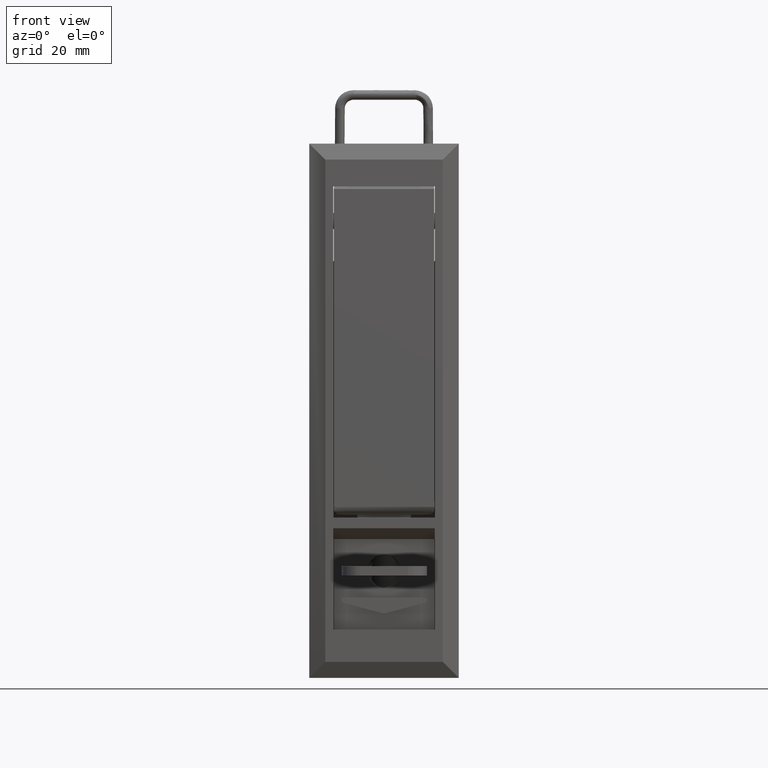
[diagram: clean part render]
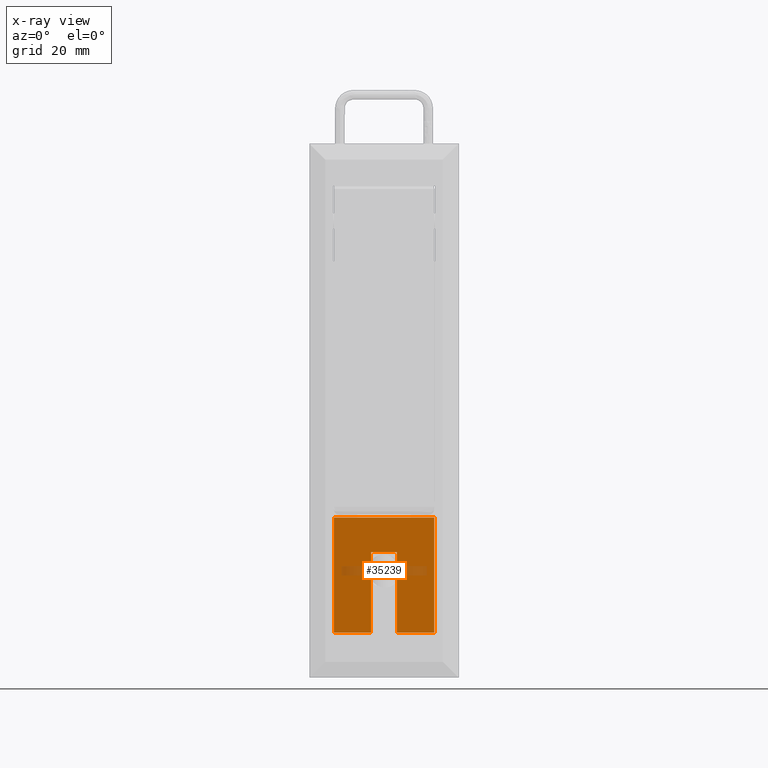
[diagram: x-ray — body ghosted, one internal face saturated and labeled with its STEP entity id]
A machine part, front view, then the same camera in x-ray: the body is ghosted and one INTERNAL B-rep face — a face not visible from any outside direction — is saturated and labeled: STEP entity #35239.
In plain terms, the highlighted face is a freeform B-spline surface patch.
Its self-contained STEP definition (entity closure, byte-faithful):
#34225=CARTESIAN_POINT('',(10.699999999999999,-2.441823089414955,23.500000000000000));
#34226=VERTEX_POINT('',#34225);
#34227=CARTESIAN_POINT('',(10.699999999999999,2.441823089414955,23.500000000000000));
#34228=VERTEX_POINT('',#34227);
#34229=CARTESIAN_POINT('',(10.699999999999999,-2.441823089414955,23.500000000000000));
#34230=CARTESIAN_POINT('',(10.699999999999999,2.441823089414955,23.500000000000000));
#34231=QUASI_UNIFORM_CURVE('',1,(#34229,#34230),.UNSPECIFIED.,.F.,.U.);
#34232=EDGE_CURVE('',#34226,#34228,#34231,.T.);
#35091=CARTESIAN_POINT('',(10.699999999999999,-9.400000000000000,30.0));
#35092=VERTEX_POINT('',#35091);
#35105=CARTESIAN_POINT('',(10.699999999999999,-9.400000000000000,8.500000000000000));
#35106=VERTEX_POINT('',#35105);
#35112=CARTESIAN_POINT('',(10.699999999999999,-9.400000000000000,30.0));
#35113=CARTESIAN_POINT('',(10.699999999999999,-9.400000000000000,8.500000000000000));
#35114=QUASI_UNIFORM_CURVE('',1,(#35112,#35113),.UNSPECIFIED.,.F.,.U.);
#35115=EDGE_CURVE('',#35092,#35106,#35114,.T.);
#35127=CARTESIAN_POINT('',(10.699999999999999,9.400000000000000,30.0));
#35128=VERTEX_POINT('',#35127);
#35134=CARTESIAN_POINT('',(10.699999999999999,9.400000000000000,8.500000000000000));
#35135=VERTEX_POINT('',#35134);
#35136=CARTESIAN_POINT('',(10.699999999999999,9.400000000000000,30.0));
#35137=CARTESIAN_POINT('',(10.699999999999999,9.400000000000000,8.500000000000000));
#35138=QUASI_UNIFORM_CURVE('',1,(#35136,#35137),.UNSPECIFIED.,.F.,.U.);
#35139=EDGE_CURVE('',#35128,#35135,#35138,.T.);
#35161=CARTESIAN_POINT('',(10.699999999999999,2.441823089414955,8.500000000000000));
#35162=VERTEX_POINT('',#35161);
#35177=CARTESIAN_POINT('',(10.699999999999999,-2.441823089414955,8.500000000000000));
#35178=VERTEX_POINT('',#35177);
#35192=CARTESIAN_POINT('',(10.699999999999999,-2.441823089414955,8.500000000000000));
#35193=CARTESIAN_POINT('',(10.699999999999999,-9.400000000000000,8.500000000000000));
#35194=QUASI_UNIFORM_CURVE('',1,(#35192,#35193),.UNSPECIFIED.,.F.,.U.);
#35195=EDGE_CURVE('',#35178,#35106,#35194,.T.);
#35204=CARTESIAN_POINT('',(10.699999999999999,9.400000000000000,8.500000000000000));
#35205=CARTESIAN_POINT('',(10.699999999999999,2.441823089414955,8.500000000000000));
#35206=QUASI_UNIFORM_CURVE('',1,(#35204,#35205),.UNSPECIFIED.,.F.,.U.);
#35207=EDGE_CURVE('',#35135,#35162,#35206,.T.);
#35212=CARTESIAN_POINT('',(10.699999999999999,-10.339059543433249,7.426075041671171));
#35213=CARTESIAN_POINT('',(10.699999999999999,-10.339059543433249,31.073925535003770));
#35214=CARTESIAN_POINT('',(10.699999999999999,10.339059039177959,7.426075041671171));
#35215=CARTESIAN_POINT('',(10.699999999999999,10.339059039177959,31.073925535003770));
#35216=B_SPLINE_SURFACE_WITH_KNOTS('',1,1,((#35212,#35214),(#35213,#35215)),.UNSPECIFIED.,.F.,.F.,.U.,(2,2),(2,2),(0.0,23.647850493332601),(0.0,20.678118582611209),.UNSPECIFIED.);
#35217=ORIENTED_EDGE('',*,*,#34232,.T.);
#35218=CARTESIAN_POINT('',(10.699999999999999,2.441823089414955,23.500000000000000));
#35219=CARTESIAN_POINT('',(10.699999999999999,2.441823089414955,8.500000000000000));
#35220=QUASI_UNIFORM_CURVE('',1,(#35218,#35219),.UNSPECIFIED.,.F.,.U.);
#35221=EDGE_CURVE('',#34228,#35162,#35220,.T.);
#35222=ORIENTED_EDGE('',*,*,#35221,.T.);
#35223=ORIENTED_EDGE('',*,*,#35207,.F.);
#35224=ORIENTED_EDGE('',*,*,#35139,.F.);
#35225=CARTESIAN_POINT('',(10.699999999999999,9.400000000000000,30.0));
#35226=CARTESIAN_POINT('',(10.699999999999999,-9.400000000000000,30.0));
#35227=QUASI_UNIFORM_CURVE('',1,(#35225,#35226),.UNSPECIFIED.,.F.,.U.);
#35228=EDGE_CURVE('',#35128,#35092,#35227,.T.);
#35229=ORIENTED_EDGE('',*,*,#35228,.T.);
#35230=ORIENTED_EDGE('',*,*,#35115,.T.);
#35231=ORIENTED_EDGE('',*,*,#35195,.F.);
#35232=CARTESIAN_POINT('',(10.699999999999999,-2.441823089414955,8.500000000000000));
#35233=CARTESIAN_POINT('',(10.699999999999999,-2.441823089414955,23.500000000000000));
#35234=QUASI_UNIFORM_CURVE('',1,(#35232,#35233),.UNSPECIFIED.,.F.,.U.);
#35235=EDGE_CURVE('',#35178,#34226,#35234,.T.);
#35236=ORIENTED_EDGE('',*,*,#35235,.T.);
#35237=EDGE_LOOP('',(#35217,#35222,#35223,#35224,#35229,#35230,#35231,#35236));
#35238=FACE_OUTER_BOUND('',#35237,.T.);
#35239=ADVANCED_FACE('',(#35238),#35216,.F.);